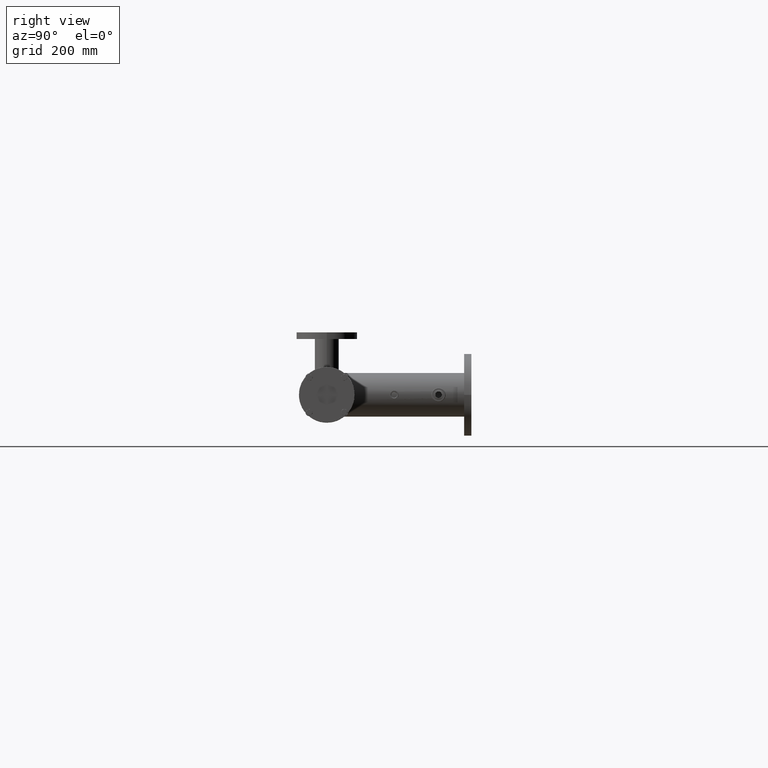
[diagram: clean part render]
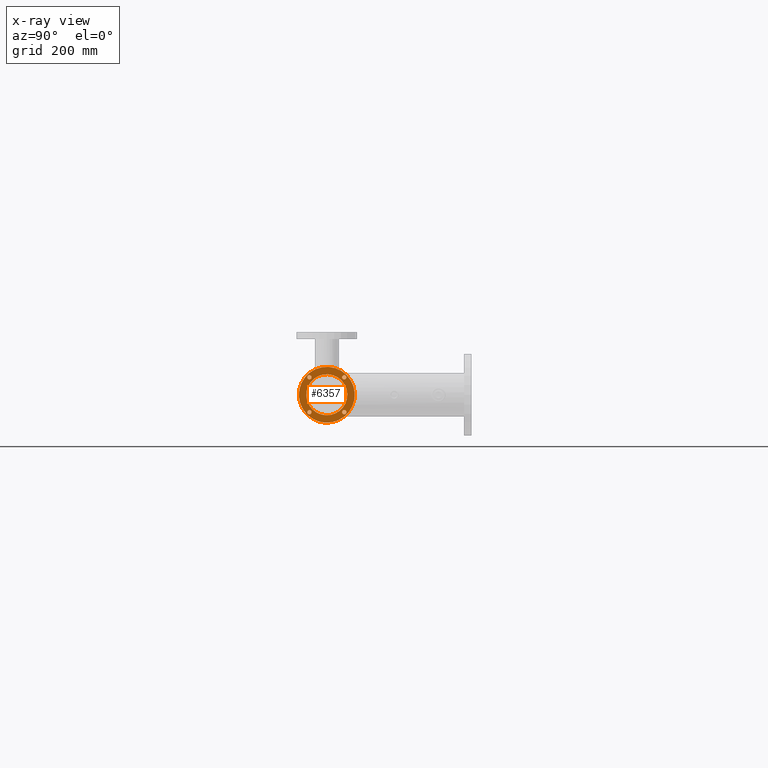
[diagram: x-ray — body ghosted, one internal face saturated and labeled with its STEP entity id]
A machine part, right view, then the same camera in x-ray: the body is ghosted and one INTERNAL B-rep face — a face not visible from any outside direction — is saturated and labeled: STEP entity #6357.
In plain terms, the highlighted planar face has unit normal (-1, 0, -0).
Its self-contained STEP definition (entity closure, byte-faithful):
#205 = DIRECTION ( 'NONE',  ( 0.000000000000000000, 0.000000000000000000, 1.000000000000000000 ) ) ;
#788 = ORIENTED_EDGE ( 'NONE', *, *, #10038, .F. ) ;
#822 = AXIS2_PLACEMENT_3D ( 'NONE', #5527, #8673, #6847 ) ;
#918 = EDGE_CURVE ( 'NONE', #2772, #5362, #2021, .T. ) ;
#1006 = DIRECTION ( 'NONE',  ( 0.000000000000000000, 0.000000000000000000, 1.000000000000000000 ) ) ;
#1045 = CARTESIAN_POINT ( 'NONE',  ( 0.000000000000000000, 0.000000000000000000, 1.500000000000000000 ) ) ;
#1052 = DIRECTION ( 'NONE',  ( 1.000000000000000000, 0.000000000000000000, 0.000000000000000000 ) ) ;
#1072 = DIRECTION ( 'NONE',  ( -4.270088556250599530E-15, 1.000000000000000000, 0.000000000000000000 ) ) ;
#1420 = FACE_BOUND ( 'NONE', #6193, .T. ) ;
#1489 = ORIENTED_EDGE ( 'NONE', *, *, #4529, .F. ) ;
#1626 = CIRCLE ( 'NONE', #9861, 62.50000000000000000 ) ;
#1821 = AXIS2_PLACEMENT_3D ( 'NONE', #5755, #9539, #8713 ) ;
#1841 = CARTESIAN_POINT ( 'NONE',  ( 0.000000000000000000, 75.00000000000000000, 1.500000000000000000 ) ) ;
#2021 = CIRCLE ( 'NONE', #3354, 6.500000000000003553 ) ;
#2080 = PLANE ( 'NONE',  #7759 ) ;
#2131 = CARTESIAN_POINT ( 'NONE',  ( 81.50000000000000000, 7.855833012397049923E-13, 1.500000000000000000 ) ) ;
#2138 = CARTESIAN_POINT ( 'NONE',  ( 0.000000000000000000, 0.000000000000000000, 1.500000000000000000 ) ) ;
#2236 = FACE_OUTER_BOUND ( 'NONE', #3040, .T. ) ;
#2541 = CIRCLE ( 'NONE', #3870, 62.50000000000000000 ) ;
#2565 = EDGE_CURVE ( 'NONE', #6946, #8764, #7401, .T. ) ;
#2681 = CARTESIAN_POINT ( 'NONE',  ( 84.99999999999998579, 1.040949779275250021E-14, 1.500000000000000000 ) ) ;
#2772 = VERTEX_POINT ( 'NONE', #3587 ) ;
#2797 = VERTEX_POINT ( 'NONE', #2835 ) ;
#2818 = DIRECTION ( 'NONE',  ( 0.000000000000000000, 0.000000000000000000, 1.000000000000000000 ) ) ;
#2823 = CARTESIAN_POINT ( 'NONE',  ( -68.49999999999998579, -2.618611004132350143E-13, 1.500000000000000000 ) ) ;
#2835 = CARTESIAN_POINT ( 'NONE',  ( 6.500000000000003553, -75.00000000000000000, 1.500000000000000000 ) ) ;
#2944 = DIRECTION ( 'NONE',  ( 0.000000000000000000, 0.000000000000000000, 1.000000000000000000 ) ) ;
#2983 = VERTEX_POINT ( 'NONE', #3759 ) ;
#3040 = EDGE_LOOP ( 'NONE', ( #4785, #7816 ) ) ;
#3119 = EDGE_LOOP ( 'NONE', ( #3355, #6617 ) ) ;
#3220 = EDGE_CURVE ( 'NONE', #2797, #2983, #4942, .T. ) ;
#3354 = AXIS2_PLACEMENT_3D ( 'NONE', #8852, #9086, #7093 ) ;
#3355 = ORIENTED_EDGE ( 'NONE', *, *, #6102, .F. ) ;
#3432 = CIRCLE ( 'NONE', #9031, 84.99999999999998579 ) ;
#3477 = VERTEX_POINT ( 'NONE', #2823 ) ;
#3584 = DIRECTION ( 'NONE',  ( 1.000000000000000000, 0.000000000000000000, 0.000000000000000000 ) ) ;
#3587 = CARTESIAN_POINT ( 'NONE',  ( 68.49999999999998579, 7.863793216591508339E-13, 1.500000000000000000 ) ) ;
#3759 = CARTESIAN_POINT ( 'NONE',  ( -6.500000000000003553, -75.00000000000000000, 1.500000000000000000 ) ) ;
#3870 = AXIS2_PLACEMENT_3D ( 'NONE', #5220, #6865, #4449 ) ;
#3971 = AXIS2_PLACEMENT_3D ( 'NONE', #7447, #8162, #10011 ) ;
#3973 = CARTESIAN_POINT ( 'NONE',  ( -6.500000000000003553, 75.00000000000000000, 1.500000000000000000 ) ) ;
#4117 = CARTESIAN_POINT ( 'NONE',  ( 0.000000000000000000, -75.00000000000000000, 1.500000000000000000 ) ) ;
#4138 = EDGE_LOOP ( 'NONE', ( #4945, #7941 ) ) ;
#4449 = DIRECTION ( 'NONE',  ( 1.000000000000000000, 0.000000000000000000, 0.000000000000000000 ) ) ;
#4529 = EDGE_CURVE ( 'NONE', #9474, #6451, #2541, .T. ) ;
#4780 = VERTEX_POINT ( 'NONE', #2681 ) ;
#4785 = ORIENTED_EDGE ( 'NONE', *, *, #5296, .T. ) ;
#4887 = DIRECTION ( 'NONE',  ( -1.000000000000000000, 0.000000000000000000, 0.000000000000000000 ) ) ;
#4908 = AXIS2_PLACEMENT_3D ( 'NONE', #1841, #8670, #1052 ) ;
#4922 = CARTESIAN_POINT ( 'NONE',  ( 62.50000000000000000, 7.654042494670957804E-15, 1.500000000000000000 ) ) ;
#4942 = CIRCLE ( 'NONE', #9393, 6.500000000000003553 ) ;
#4945 = ORIENTED_EDGE ( 'NONE', *, *, #3220, .F. ) ;
#4986 = ORIENTED_EDGE ( 'NONE', *, *, #8425, .F. ) ;
#5220 = CARTESIAN_POINT ( 'NONE',  ( 0.000000000000000000, 0.000000000000000000, 1.500000000000000000 ) ) ;
#5238 = DIRECTION ( 'NONE',  ( 1.000000000000000000, 0.000000000000000000, -0.000000000000000000 ) ) ;
#5296 = EDGE_CURVE ( 'NONE', #8776, #4780, #3432, .T. ) ;
#5362 = VERTEX_POINT ( 'NONE', #2131 ) ;
#5527 = CARTESIAN_POINT ( 'NONE',  ( 0.000000000000000000, 75.00000000000000000, 1.500000000000000000 ) ) ;
#5552 = ORIENTED_EDGE ( 'NONE', *, *, #6595, .F. ) ;
#5581 = AXIS2_PLACEMENT_3D ( 'NONE', #8203, #7278, #1072 ) ;
#5657 = EDGE_LOOP ( 'NONE', ( #788, #1489 ) ) ;
#5713 = ORIENTED_EDGE ( 'NONE', *, *, #2565, .F. ) ;
#5743 = CARTESIAN_POINT ( 'NONE',  ( 0.000000000000000000, 0.000000000000000000, 1.500000000000000000 ) ) ;
#5755 = CARTESIAN_POINT ( 'NONE',  ( 0.000000000000000000, -75.00000000000000000, 1.500000000000000000 ) ) ;
#6012 = FACE_BOUND ( 'NONE', #4138, .T. ) ;
#6102 = EDGE_CURVE ( 'NONE', #3477, #7104, #10028, .T. ) ;
#6168 = CARTESIAN_POINT ( 'NONE',  ( -84.99999999999998579, 0.000000000000000000, 1.500000000000000000 ) ) ;
#6193 = EDGE_LOOP ( 'NONE', ( #5552, #7660 ) ) ;
#6357 = ADVANCED_FACE ( 'NONE', ( #9314, #6012, #1420, #6883, #2236, #9157 ), #2080, .T. ) ;
#6451 = VERTEX_POINT ( 'NONE', #9776 ) ;
#6489 = CARTESIAN_POINT ( 'NONE',  ( -75.00000000000000000, -2.618611004132350143E-13, 1.500000000000000000 ) ) ;
#6491 = EDGE_CURVE ( 'NONE', #4780, #8776, #8410, .T. ) ;
#6519 = CARTESIAN_POINT ( 'NONE',  ( -81.50000000000000000, -2.610650799937892232E-13, 1.500000000000000000 ) ) ;
#6531 = CIRCLE ( 'NONE', #4908, 6.500000000000003553 ) ;
#6595 = EDGE_CURVE ( 'NONE', #5362, #2772, #8571, .T. ) ;
#6617 = ORIENTED_EDGE ( 'NONE', *, *, #6691, .F. ) ;
#6691 = EDGE_CURVE ( 'NONE', #7104, #3477, #9238, .T. ) ;
#6847 = DIRECTION ( 'NONE',  ( 1.000000000000000000, 0.000000000000000000, 0.000000000000000000 ) ) ;
#6865 = DIRECTION ( 'NONE',  ( 0.000000000000000000, 0.000000000000000000, 1.000000000000000000 ) ) ;
#6883 = FACE_BOUND ( 'NONE', #7557, .T. ) ;
#6946 = VERTEX_POINT ( 'NONE', #3973 ) ;
#6981 = EDGE_CURVE ( 'NONE', #2983, #2797, #8417, .T. ) ;
#7093 = DIRECTION ( 'NONE',  ( 1.067522139062649961E-14, -1.000000000000000000, 0.000000000000000000 ) ) ;
#7104 = VERTEX_POINT ( 'NONE', #6519 ) ;
#7278 = DIRECTION ( 'NONE',  ( 0.000000000000000000, 0.000000000000000000, 1.000000000000000000 ) ) ;
#7401 = CIRCLE ( 'NONE', #822, 6.500000000000003553 ) ;
#7447 = CARTESIAN_POINT ( 'NONE',  ( 75.00000000000000000, 7.855833012397049923E-13, 1.500000000000000000 ) ) ;
#7557 = EDGE_LOOP ( 'NONE', ( #4986, #5713 ) ) ;
#7574 = AXIS2_PLACEMENT_3D ( 'NONE', #5743, #8892, #3584 ) ;
#7660 = ORIENTED_EDGE ( 'NONE', *, *, #918, .F. ) ;
#7759 = AXIS2_PLACEMENT_3D ( 'NONE', #2138, #10093, #5238 ) ;
#7816 = ORIENTED_EDGE ( 'NONE', *, *, #6491, .T. ) ;
#7941 = ORIENTED_EDGE ( 'NONE', *, *, #6981, .F. ) ;
#8042 = DIRECTION ( 'NONE',  ( -4.270088556250599530E-15, 1.000000000000000000, 0.000000000000000000 ) ) ;
#8162 = DIRECTION ( 'NONE',  ( 0.000000000000000000, 0.000000000000000000, 1.000000000000000000 ) ) ;
#8203 = CARTESIAN_POINT ( 'NONE',  ( -75.00000000000000000, -2.618611004132350143E-13, 1.500000000000000000 ) ) ;
#8410 = CIRCLE ( 'NONE', #7574, 84.99999999999998579 ) ;
#8417 = CIRCLE ( 'NONE', #1821, 6.500000000000003553 ) ;
#8425 = EDGE_CURVE ( 'NONE', #8764, #6946, #6531, .T. ) ;
#8571 = CIRCLE ( 'NONE', #3971, 6.500000000000003553 ) ;
#8644 = CARTESIAN_POINT ( 'NONE',  ( 6.500000000000003553, 75.00000000000000000, 1.500000000000000000 ) ) ;
#8670 = DIRECTION ( 'NONE',  ( 0.000000000000000000, 0.000000000000000000, 1.000000000000000000 ) ) ;
#8673 = DIRECTION ( 'NONE',  ( 0.000000000000000000, 0.000000000000000000, 1.000000000000000000 ) ) ;
#8713 = DIRECTION ( 'NONE',  ( -1.000000000000000000, 0.000000000000000000, 0.000000000000000000 ) ) ;
#8764 = VERTEX_POINT ( 'NONE', #8644 ) ;
#8776 = VERTEX_POINT ( 'NONE', #6168 ) ;
#8852 = CARTESIAN_POINT ( 'NONE',  ( 75.00000000000000000, 7.855833012397049923E-13, 1.500000000000000000 ) ) ;
#8892 = DIRECTION ( 'NONE',  ( 0.000000000000000000, 0.000000000000000000, 1.000000000000000000 ) ) ;
#8901 = AXIS2_PLACEMENT_3D ( 'NONE', #6489, #205, #8042 ) ;
#9031 = AXIS2_PLACEMENT_3D ( 'NONE', #1045, #2818, #9105 ) ;
#9086 = DIRECTION ( 'NONE',  ( 0.000000000000000000, 0.000000000000000000, 1.000000000000000000 ) ) ;
#9105 = DIRECTION ( 'NONE',  ( 1.000000000000000000, 0.000000000000000000, 0.000000000000000000 ) ) ;
#9157 = FACE_BOUND ( 'NONE', #5657, .T. ) ;
#9238 = CIRCLE ( 'NONE', #8901, 6.500000000000003553 ) ;
#9314 = FACE_BOUND ( 'NONE', #3119, .T. ) ;
#9393 = AXIS2_PLACEMENT_3D ( 'NONE', #4117, #1006, #4887 ) ;
#9474 = VERTEX_POINT ( 'NONE', #4922 ) ;
#9539 = DIRECTION ( 'NONE',  ( 0.000000000000000000, 0.000000000000000000, 1.000000000000000000 ) ) ;
#9776 = CARTESIAN_POINT ( 'NONE',  ( -62.50000000000000000, 0.000000000000000000, 1.500000000000000000 ) ) ;
#9861 = AXIS2_PLACEMENT_3D ( 'NONE', #10004, #2944, #9908 ) ;
#9908 = DIRECTION ( 'NONE',  ( 1.000000000000000000, 0.000000000000000000, 0.000000000000000000 ) ) ;
#10004 = CARTESIAN_POINT ( 'NONE',  ( 0.000000000000000000, 0.000000000000000000, 1.500000000000000000 ) ) ;
#10011 = DIRECTION ( 'NONE',  ( 1.067522139062649961E-14, -1.000000000000000000, 0.000000000000000000 ) ) ;
#10028 = CIRCLE ( 'NONE', #5581, 6.500000000000003553 ) ;
#10038 = EDGE_CURVE ( 'NONE', #6451, #9474, #1626, .T. ) ;
#10093 = DIRECTION ( 'NONE',  ( 0.000000000000000000, 0.000000000000000000, 1.000000000000000000 ) ) ;